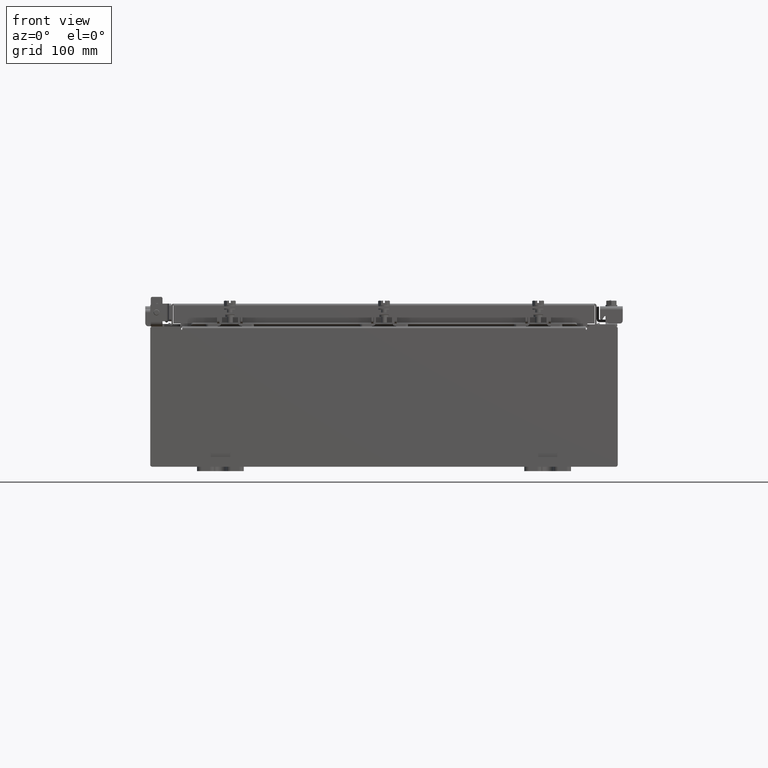
[diagram: clean part render]
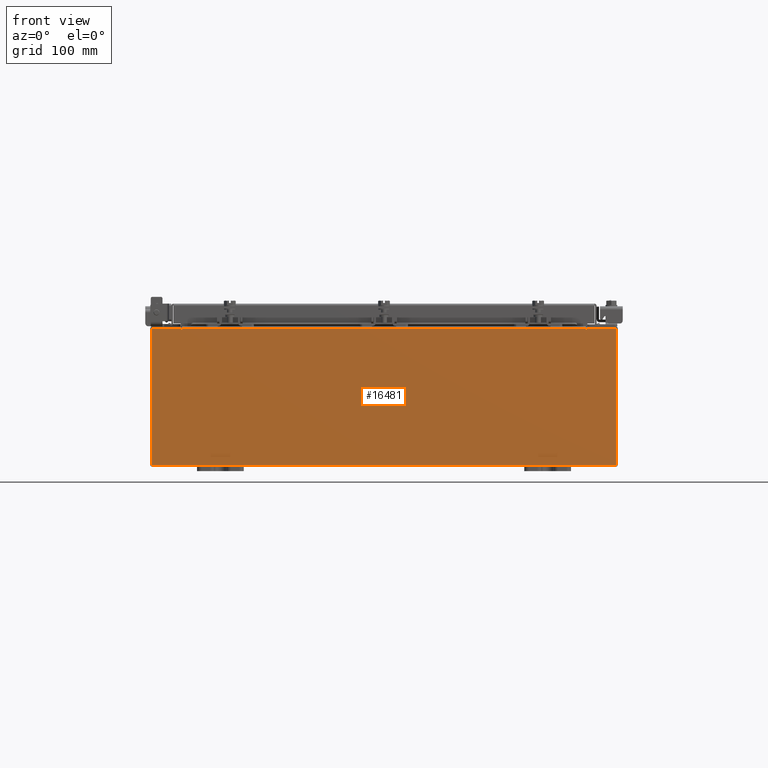
[diagram: same view with one face highlighted and labeled with its STEP entity id]
A machine part, front view. The second image highlights one B-rep face of the part: STEP entity #16481.
In plain terms, the highlighted planar face has unit normal (0, 1, -0).
Its self-contained STEP definition (entity closure, byte-faithful):
#119 = DIRECTION ( 'NONE',  ( 0.0000000000000000000, 5.032775303431299600E-016, -1.000000000000000000 ) ) ;
#183 = VERTEX_POINT ( 'NONE', #10691 ) ;
#915 = CARTESIAN_POINT ( 'NONE',  ( -8.674549999999996400, 0.0000000000000000000, 2.874949999999972100 ) ) ;
#1131 = LINE ( 'NONE', #17648, #9892 ) ;
#1424 = CARTESIAN_POINT ( 'NONE',  ( -9.925300000000000000, 0.0000000000000000000, 2.925299999999968900 ) ) ;
#1771 = EDGE_CURVE ( 'NONE', #3383, #16553, #7976, .T. ) ;
#1800 = EDGE_CURVE ( 'NONE', #11299, #7413, #10988, .T. ) ;
#2018 = VERTEX_POINT ( 'NONE', #10719 ) ;
#2348 = EDGE_CURVE ( 'NONE', #16553, #11299, #1131, .T. ) ;
#2467 = VECTOR ( 'NONE', #3407, 39.37007874015748100 ) ;
#2794 = ORIENTED_EDGE ( 'NONE', *, *, #3361, .F. ) ;
#3361 = EDGE_CURVE ( 'NONE', #16288, #14770, #21220, .T. ) ;
#3383 = VERTEX_POINT ( 'NONE', #11066 ) ;
#3407 = DIRECTION ( 'NONE',  ( 2.498001805406602200E-015, -5.032775303431299600E-016, 1.000000000000000000 ) ) ;
#3548 = CARTESIAN_POINT ( 'NONE',  ( 9.925299999999968000, 0.0000000000000000000, -2.925299999999974300 ) ) ;
#4460 = CARTESIAN_POINT ( 'NONE',  ( -8.637200000000000000, 0.0000000000000000000, 2.912299999999970800 ) ) ;
#4479 = CARTESIAN_POINT ( 'NONE',  ( -9.925300000000000000, 0.0000000000000000000, 2.925299999999968900 ) ) ;
#4819 = DIRECTION ( 'NONE',  ( -2.498001805406602200E-015, 5.032775303431299600E-016, -1.000000000000000000 ) ) ;
#5167 = CARTESIAN_POINT ( 'NONE',  ( 8.637199999999985800, 0.0000000000000000000, 1.639108796198557900E-014 ) ) ;
#5187 = CARTESIAN_POINT ( 'NONE',  ( -8.637200000000010600, 0.0000000000000000000, -2.431344714361194200E-014 ) ) ;
#5283 = CARTESIAN_POINT ( 'NONE',  ( 8.674550000000000000, 0.0000000000000000000, 2.874950000000029000 ) ) ;
#5549 = EDGE_CURVE ( 'NONE', #18802, #16288, #18329, .T. ) ;
#5597 = CARTESIAN_POINT ( 'NONE',  ( 8.674549999999799300, 0.0000000000000000000, -5.477355227296847600E-013 ) ) ;
#5813 = CARTESIAN_POINT ( 'NONE',  ( -8.655874999999996400, 0.0000000000000000000, 2.874949999999972100 ) ) ;
#6003 = CARTESIAN_POINT ( 'NONE',  ( -8.637199999999996400, 0.0000000000000000000, 2.912299999999970800 ) ) ;
#6065 = ORIENTED_EDGE ( 'NONE', *, *, #8233, .F. ) ;
#6257 = ORIENTED_EDGE ( 'NONE', *, *, #5549, .F. ) ;
#6370 = DIRECTION ( 'NONE',  ( 2.498001805406602200E-015, -5.032775303431299600E-016, 1.000000000000000000 ) ) ;
#6450 = EDGE_CURVE ( 'NONE', #2018, #16961, #20992, .T. ) ;
#6465 = AXIS2_PLACEMENT_3D ( 'NONE', #20975, #10592, #119 ) ;
#6480 = ORIENTED_EDGE ( 'NONE', *, *, #1800, .T. ) ;
#6697 = CARTESIAN_POINT ( 'NONE',  ( -8.674550000000010600, 0.0000000000000000000, -2.458663194297836900E-014 ) ) ;
#6730 = VECTOR ( 'NONE', #17120, 39.37007874015748100 ) ;
#7025 = CARTESIAN_POINT ( 'NONE',  ( -9.925300000000033800, 0.0000000000000000000, -2.925300000000032400 ) ) ;
#7221 = DIRECTION ( 'NONE',  ( -1.000000000000000000, -8.064669306445575700E-016, -2.498001805406602200E-015 ) ) ;
#7413 = VERTEX_POINT ( 'NONE', #18674 ) ;
#7556 = DIRECTION ( 'NONE',  ( 0.0000000000000000000, 5.032775303431299600E-016, -1.000000000000000000 ) ) ;
#7714 = ORIENTED_EDGE ( 'NONE', *, *, #14809, .T. ) ;
#7763 = VERTEX_POINT ( 'NONE', #16394 ) ;
#7976 = LINE ( 'NONE', #13529, #12092 ) ;
#8040 = AXIS2_PLACEMENT_3D ( 'NONE', #13799, #19040, #8641 ) ;
#8233 = EDGE_CURVE ( 'NONE', #9899, #2018, #17248, .T. ) ;
#8440 = DIRECTION ( 'NONE',  ( 1.000000000000000000, 8.064669306445575700E-016, 2.498001805406602200E-015 ) ) ;
#8513 = EDGE_CURVE ( 'NONE', #18802, #16961, #20481, .T. ) ;
#8641 = DIRECTION ( 'NONE',  ( -2.498001805406602200E-015, 5.032775303431299600E-016, -1.000000000000000000 ) ) ;
#8859 = EDGE_CURVE ( 'NONE', #183, #9899, #10721, .T. ) ;
#9892 = VECTOR ( 'NONE', #7221, 39.37007874015748100 ) ;
#9899 = VERTEX_POINT ( 'NONE', #5283 ) ;
#10592 = DIRECTION ( 'NONE',  ( 8.064669306445577600E-016, 1.000000000000000000, -5.032775303431295600E-016 ) ) ;
#10691 = CARTESIAN_POINT ( 'NONE',  ( 8.674550000000001800, 0.0000000000000000000, 2.925300000000030200 ) ) ;
#10719 = CARTESIAN_POINT ( 'NONE',  ( 8.637200000000000000, 0.0000000000000000000, 2.874950000000028100 ) ) ;
#10721 = LINE ( 'NONE', #5597, #11481 ) ;
#10988 = LINE ( 'NONE', #1424, #20239 ) ;
#11066 = CARTESIAN_POINT ( 'NONE',  ( 9.925300000000000000, 0.0000000000000000000, 2.925300000000032400 ) ) ;
#11219 = VECTOR ( 'NONE', #14923, 39.37007874015748100 ) ;
#11299 = VERTEX_POINT ( 'NONE', #7025 ) ;
#11481 = VECTOR ( 'NONE', #17797, 39.37007874015748100 ) ;
#12092 = VECTOR ( 'NONE', #4819, 39.37007874015748100 ) ;
#12324 = ORIENTED_EDGE ( 'NONE', *, *, #8513, .T. ) ;
#12433 = EDGE_CURVE ( 'NONE', #7413, #7763, #22330, .T. ) ;
#13490 = FACE_OUTER_BOUND ( 'NONE', #21313, .T. ) ;
#13529 = CARTESIAN_POINT ( 'NONE',  ( 9.925300000000000000, 0.0000000000000000000, 2.925300000000032400 ) ) ;
#13535 = CARTESIAN_POINT ( 'NONE',  ( 8.637200000000000000, 0.0000000000000000000, 2.912300000000029400 ) ) ;
#13718 = VECTOR ( 'NONE', #15654, 39.37007874015748100 ) ;
#13799 = CARTESIAN_POINT ( 'NONE',  ( 0.0000000000000000000, 0.0000000000000000000, 0.0000000000000000000 ) ) ;
#14122 = LINE ( 'NONE', #4479, #19306 ) ;
#14687 = ORIENTED_EDGE ( 'NONE', *, *, #12433, .T. ) ;
#14770 = VERTEX_POINT ( 'NONE', #915 ) ;
#14809 = EDGE_CURVE ( 'NONE', #183, #3383, #14122, .T. ) ;
#14923 = DIRECTION ( 'NONE',  ( 1.000000000000000000, 8.064669306445575700E-016, 2.498001805406602200E-015 ) ) ;
#14946 = DIRECTION ( 'NONE',  ( 1.000000000000000000, 8.064669306445575700E-016, 2.498001805406602200E-015 ) ) ;
#15654 = DIRECTION ( 'NONE',  ( -2.498001805406602200E-015, 5.032775303431299600E-016, -1.000000000000000000 ) ) ;
#16288 = VERTEX_POINT ( 'NONE', #20325 ) ;
#16394 = CARTESIAN_POINT ( 'NONE',  ( -8.674549999999996400, 0.0000000000000000000, 2.925299999999971100 ) ) ;
#16481 = ADVANCED_FACE ( 'NONE', ( #13490 ), #17311, .F. ) ;
#16553 = VERTEX_POINT ( 'NONE', #3548 ) ;
#16666 = ORIENTED_EDGE ( 'NONE', *, *, #21845, .F. ) ;
#16961 = VERTEX_POINT ( 'NONE', #13535 ) ;
#17120 = DIRECTION ( 'NONE',  ( 2.498001805406602200E-015, -5.032775303431299600E-016, 1.000000000000000000 ) ) ;
#17248 = CIRCLE ( 'NONE', #6465, 0.01867500000000003900 ) ;
#17311 = PLANE ( 'NONE',  #8040 ) ;
#17648 = CARTESIAN_POINT ( 'NONE',  ( -9.925300000000033800, 0.0000000000000000000, -2.925300000000032400 ) ) ;
#17797 = DIRECTION ( 'NONE',  ( -6.760659351140667600E-014, 5.032775303430772000E-016, -1.000000000000000000 ) ) ;
#17998 = DIRECTION ( 'NONE',  ( 8.064669306445577600E-016, 1.000000000000000000, -5.032775303431295600E-016 ) ) ;
#18329 = LINE ( 'NONE', #5187, #13718 ) ;
#18674 = CARTESIAN_POINT ( 'NONE',  ( -9.925300000000000000, 0.0000000000000000000, 2.925299999999968900 ) ) ;
#18802 = VERTEX_POINT ( 'NONE', #6003 ) ;
#18942 = ORIENTED_EDGE ( 'NONE', *, *, #2348, .T. ) ;
#19040 = DIRECTION ( 'NONE',  ( -8.064669306445603300E-016, -1.000000000000000000, -5.032775303431279800E-016 ) ) ;
#19157 = ORIENTED_EDGE ( 'NONE', *, *, #1771, .T. ) ;
#19306 = VECTOR ( 'NONE', #14946, 39.37007874015748100 ) ;
#19507 = ORIENTED_EDGE ( 'NONE', *, *, #8859, .F. ) ;
#20239 = VECTOR ( 'NONE', #6370, 39.37007874015748100 ) ;
#20325 = CARTESIAN_POINT ( 'NONE',  ( -8.637199999999996400, 0.0000000000000000000, 2.874949999999972100 ) ) ;
#20481 = LINE ( 'NONE', #4460, #11219 ) ;
#20927 = ORIENTED_EDGE ( 'NONE', *, *, #6450, .F. ) ;
#20975 = CARTESIAN_POINT ( 'NONE',  ( 8.655875000000000000, 0.0000000000000000000, 2.874950000000028100 ) ) ;
#20992 = LINE ( 'NONE', #5167, #2467 ) ;
#21129 = LINE ( 'NONE', #6697, #6730 ) ;
#21220 = CIRCLE ( 'NONE', #22114, 0.01867500000000003900 ) ;
#21313 = EDGE_LOOP ( 'NONE', ( #16666, #2794, #6257, #12324, #20927, #6065, #19507, #7714, #19157, #18942, #6480, #14687 ) ) ;
#21751 = VECTOR ( 'NONE', #8440, 39.37007874015748100 ) ;
#21845 = EDGE_CURVE ( 'NONE', #14770, #7763, #21129, .T. ) ;
#22114 = AXIS2_PLACEMENT_3D ( 'NONE', #5813, #17998, #7556 ) ;
#22330 = LINE ( 'NONE', #22346, #21751 ) ;
#22346 = CARTESIAN_POINT ( 'NONE',  ( -9.925300000000000000, 0.0000000000000000000, 2.925299999999968900 ) ) ;